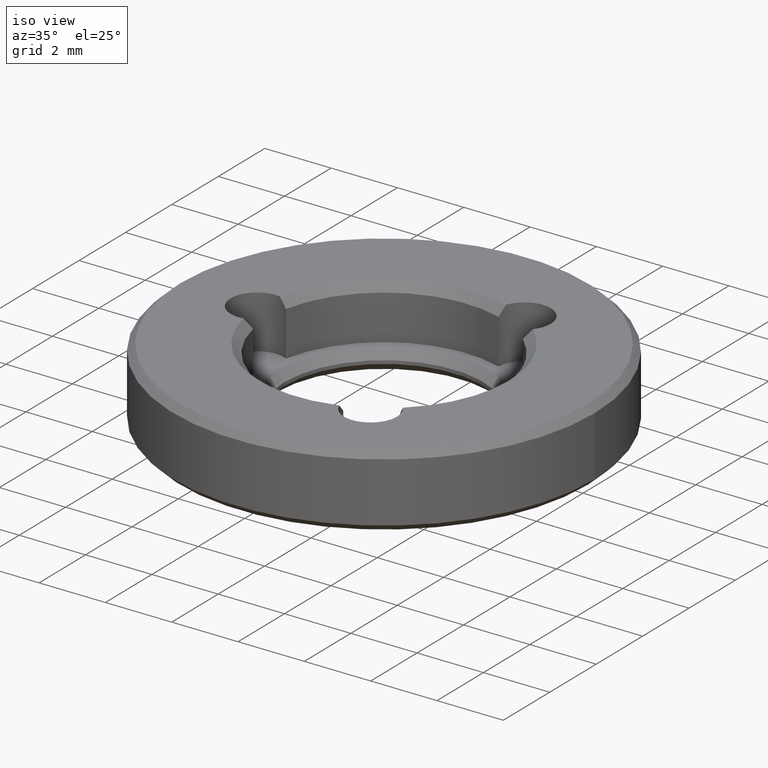
[diagram: clean part render]
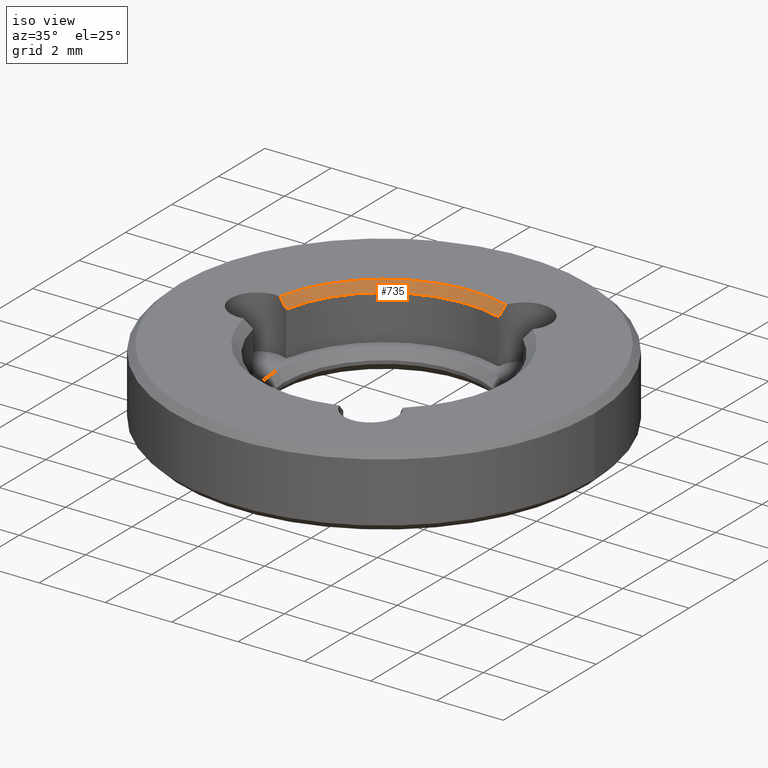
[diagram: same view with one face highlighted and labeled with its STEP entity id]
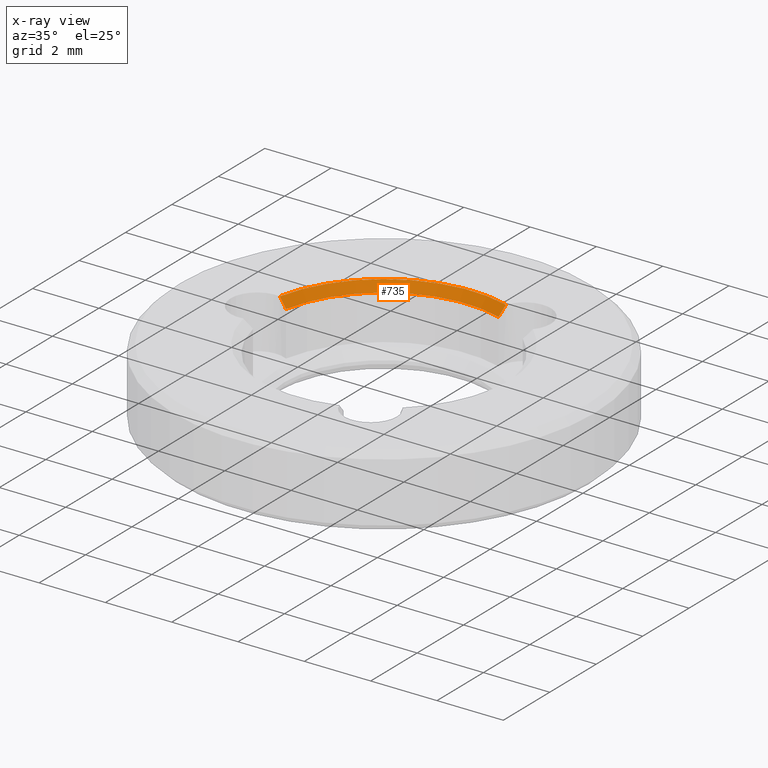
[diagram: x-ray of the same camera — body ghosted, the highlighted face saturated]
A machine part, iso view. The second image highlights one B-rep face of the part: STEP entity #735.
The next image is the same camera in x-ray: the body ghosted, the highlighted face saturated — about 0% of this face is hidden behind the body in this view.
In plain terms, the highlighted conical surface has half-angle 45 deg.
Its self-contained STEP definition (entity closure, byte-faithful):
#10 = CARTESIAN_POINT ( 'NONE',  ( 1.113143496693238976, 3.344628014558502116, 1.949999999999995959 ) ) ;
#15 = CARTESIAN_POINT ( 'NONE',  ( 1.133346610315522751, 3.512569729544490205, 2.115881670838754669 ) ) ;
#22 = DIRECTION ( 'NONE',  ( 1.000000000000000000, 0.000000000000000000, 0.000000000000000000 ) ) ;
#25 = CARTESIAN_POINT ( 'NONE',  ( -3.453104575163398415, 0.7083034610854338498, 1.949999999999995959 ) ) ;
#57 = CARTESIAN_POINT ( 'NONE',  ( -3.453104575163398415, 0.7083034610854338498, 1.949999999999995959 ) ) ;
#64 = ORIENTED_EDGE ( 'NONE', *, *, #259, .F. ) ;
#80 = EDGE_CURVE ( 'NONE', #417, #249, #273, .T. ) ;
#104 = AXIS2_PLACEMENT_3D ( 'NONE', #506, #802, #22 ) ;
#118 = EDGE_LOOP ( 'NONE', ( #738, #64, #275, #241 ) ) ;
#142 = DIRECTION ( 'NONE',  ( 1.000000000000000000, 0.000000000000000000, 0.000000000000000000 ) ) ;
#231 = DIRECTION ( 'NONE',  ( -0.000000000000000000, -0.000000000000000000, -1.000000000000000000 ) ) ;
#241 = ORIENTED_EDGE ( 'NONE', *, *, #549, .F. ) ;
#249 = VERTEX_POINT ( 'NONE', #437 ) ;
#259 = EDGE_CURVE ( 'NONE', #593, #417, #834, .T. ) ;
#269 = CARTESIAN_POINT ( 'NONE',  ( 1.162703282269326177, 3.591482434510873567, 2.200000000000000178 ) ) ;
#273 = B_SPLINE_CURVE_WITH_KNOTS ( 'NONE', 3,
 ( #719, #15, #504, #10 ),
 .UNSPECIFIED., .F., .F.,
 ( 4, 4 ),
 ( 2.812005786058547505E-07, 0.0003550956267152818174 ),
 .UNSPECIFIED. ) ;
#275 = ORIENTED_EDGE ( 'NONE', *, *, #344, .F. ) ;
#300 = DIRECTION ( 'NONE',  ( 1.000000000000000000, 0.000000000000000000, 0.000000000000000000 ) ) ;
#303 = CIRCLE ( 'NONE', #465, 3.524999999999999911 ) ;
#344 = EDGE_CURVE ( 'NONE', #672, #593, #502, .T. ) ;
#417 = VERTEX_POINT ( 'NONE', #269 ) ;
#437 = CARTESIAN_POINT ( 'NONE',  ( 1.113143496693238976, 3.344628014558502116, 1.949999999999995959 ) ) ;
#440 = CARTESIAN_POINT ( 'NONE',  ( 0.000000000000000000, 0.000000000000000000, 2.200000000000000178 ) ) ;
#465 = AXIS2_PLACEMENT_3D ( 'NONE', #643, #701, #142 ) ;
#502 = B_SPLINE_CURVE_WITH_KNOTS ( 'NONE', 3,
 ( #57, #550, #531, #826 ),
 .UNSPECIFIED., .F., .F.,
 ( 4, 4 ),
 ( 2.868043316601906492E-07, 0.0003551012304683360122 ),
 .UNSPECIFIED. ) ;
#504 = CARTESIAN_POINT ( 'NONE',  ( 1.116586065798447214, 3.430406303603278140, 2.032476182125225517 ) ) ;
#506 = CARTESIAN_POINT ( 'NONE',  ( 0.000000000000000000, 0.000000000000000000, 1.949999999999995959 ) ) ;
#531 = CARTESIAN_POINT ( 'NONE',  ( -3.608647923507530830, 0.7747779089459847501, 2.115881670838754225 ) ) ;
#549 = EDGE_CURVE ( 'NONE', #249, #672, #303, .T. ) ;
#550 = CARTESIAN_POINT ( 'NONE',  ( -3.529112037121942436, 0.7482112533084270822, 2.032476182125225073 ) ) ;
#567 = CARTESIAN_POINT ( 'NONE',  ( -3.691666666666668650, 0.7888106377466163055, 2.200000000000000178 ) ) ;
#593 = VERTEX_POINT ( 'NONE', #567 ) ;
#617 = AXIS2_PLACEMENT_3D ( 'NONE', #440, #231, #300 ) ;
#643 = CARTESIAN_POINT ( 'NONE',  ( 0.000000000000000000, 0.000000000000000000, 1.949999999999995959 ) ) ;
#672 = VERTEX_POINT ( 'NONE', #25 ) ;
#701 = DIRECTION ( 'NONE',  ( 0.000000000000000000, 0.000000000000000000, 1.000000000000000000 ) ) ;
#719 = CARTESIAN_POINT ( 'NONE',  ( 1.162703282269326177, 3.591482434510873567, 2.200000000000000178 ) ) ;
#735 = ADVANCED_FACE ( 'NONE', ( #765 ), #902, .F. ) ;
#738 = ORIENTED_EDGE ( 'NONE', *, *, #80, .F. ) ;
#765 = FACE_OUTER_BOUND ( 'NONE', #118, .T. ) ;
#802 = DIRECTION ( 'NONE',  ( 0.000000000000000000, 0.000000000000000000, 1.000000000000000000 ) ) ;
#826 = CARTESIAN_POINT ( 'NONE',  ( -3.691666666666668650, 0.7888106377466163055, 2.200000000000000178 ) ) ;
#834 = CIRCLE ( 'NONE', #617, 3.775000000000002132 ) ;
#902 = CONICAL_SURFACE ( 'NONE', #104, 3.524999999999999911, 0.7853981633974447263 ) ;